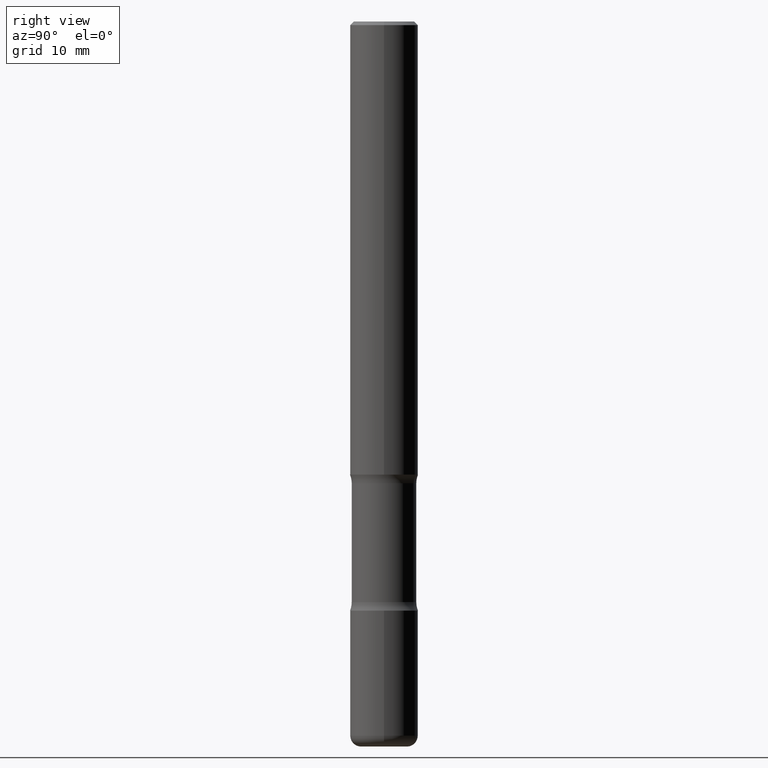
[diagram: clean part render]
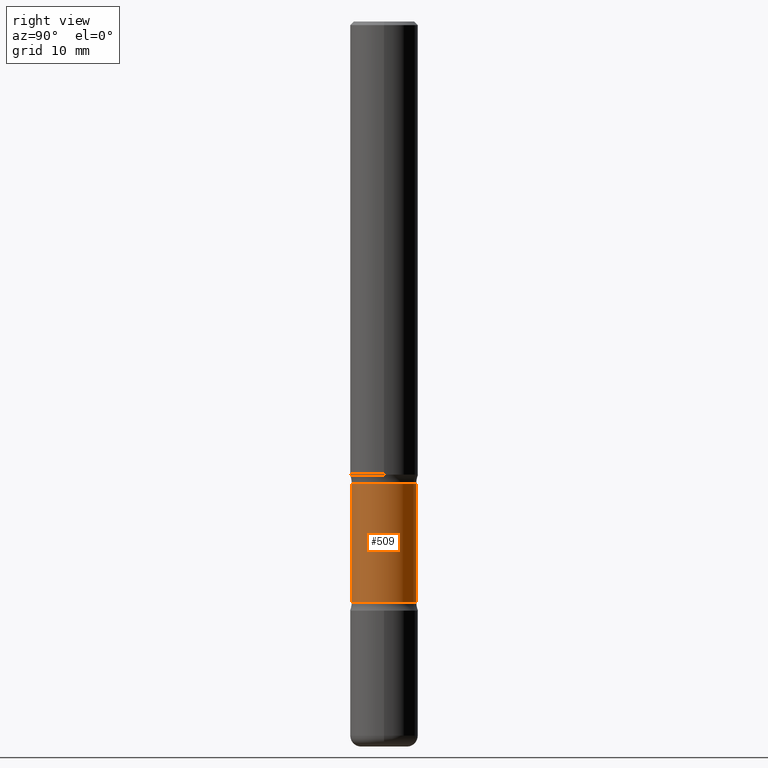
[diagram: same view with one face highlighted and labeled with its STEP entity id]
A machine part, right view. The second image highlights one B-rep face of the part: STEP entity #509.
In plain terms, the highlighted cylindrical surface (edge-blend (fillet) strip) has radius 4.5244 mm, axis along (0, -0, -1).
Its self-contained STEP definition (entity closure, byte-faithful):
#13 = ORIENTED_EDGE ( 'NONE', *, *, #151, .T. ) ;
#20 = CARTESIAN_POINT ( 'NONE',  ( 1.243840226962927197E-15, 0.1781249999999909572, -2.547495887979909224 ) ) ;
#28 = DIRECTION ( 'NONE',  ( 2.558681667686983511E-29, -3.329354077496592524E-15, -1.000000000000000000 ) ) ;
#50 = ORIENTED_EDGE ( 'NONE', *, *, #347, .F. ) ;
#56 = DIRECTION ( 'NONE',  ( 6.982962677686265133E-15, 1.000000000000000000, -3.067338098149349483E-15 ) ) ;
#61 = DIRECTION ( 'NONE',  ( 2.558681667686983511E-29, -3.329354077496592524E-15, -1.000000000000000000 ) ) ;
#70 = DIRECTION ( 'NONE',  ( 2.558681667686983511E-29, -3.329354077496592524E-15, -1.000000000000000000 ) ) ;
#95 = CIRCLE ( 'NONE', #410, 0.1781249999999999223 ) ;
#101 = CARTESIAN_POINT ( 'NONE',  ( 1.243840226962943961E-15, 0.1781249999999887368, -3.202504112020092553 ) ) ;
#103 = VERTEX_POINT ( 'NONE', #519 ) ;
#113 = VERTEX_POINT ( 'NONE', #20 ) ;
#149 = LINE ( 'NONE', #328, #386 ) ;
#151 = EDGE_CURVE ( 'NONE', #113, #103, #345, .T. ) ;
#220 = EDGE_CURVE ( 'NONE', #103, #551, #149, .T. ) ;
#241 = VERTEX_POINT ( 'NONE', #101 ) ;
#261 = CARTESIAN_POINT ( 'NONE',  ( -1.254184790217529307E-15, -0.1781250000000111355, -3.202504112020091220 ) ) ;
#262 = EDGE_CURVE ( 'NONE', #241, #551, #95, .T. ) ;
#263 = DIRECTION ( 'NONE',  ( 6.982962677686266711E-15, 1.000000000000000000, -3.067338098149349089E-15 ) ) ;
#285 = CARTESIAN_POINT ( 'NONE',  ( 7.826246762236988201E-29, -1.118918372292999451E-14, -3.202504112020091664 ) ) ;
#302 = AXIS2_PLACEMENT_3D ( 'NONE', #543, #28, #374 ) ;
#303 = AXIS2_PLACEMENT_3D ( 'NONE', #348, #418, #263 ) ;
#307 = CYLINDRICAL_SURFACE ( 'NONE', #303, 0.1781249999999999500 ) ;
#323 = CARTESIAN_POINT ( 'NONE',  ( 1.243840226962964471E-15, 0.1781249999999861278, -4.000000000000000888 ) ) ;
#328 = CARTESIAN_POINT ( 'NONE',  ( -1.222026205852954821E-15, -0.1781250000000138001, -3.999999999999999556 ) ) ;
#345 = CIRCLE ( 'NONE', #302, 0.1781249999999999500 ) ;
#347 = EDGE_CURVE ( 'NONE', #113, #241, #527, .T. ) ;
#348 = CARTESIAN_POINT ( 'NONE',  ( 9.866784870866931853E-29, -1.384432990936266734E-14, -4.000000000000000000 ) ) ;
#360 = ORIENTED_EDGE ( 'NONE', *, *, #220, .T. ) ;
#374 = DIRECTION ( 'NONE',  ( 6.982962677686266711E-15, 1.000000000000000000, -3.067338098149349089E-15 ) ) ;
#386 = VECTOR ( 'NONE', #489, 39.37007874015748143 ) ;
#410 = AXIS2_PLACEMENT_3D ( 'NONE', #285, #61, #56 ) ;
#418 = DIRECTION ( 'NONE',  ( 2.558681667686983511E-29, -3.329354077496592524E-15, -1.000000000000000000 ) ) ;
#431 = ORIENTED_EDGE ( 'NONE', *, *, #262, .F. ) ;
#489 = DIRECTION ( 'NONE',  ( 2.558681667686983511E-29, -3.329354077496592524E-15, -1.000000000000000000 ) ) ;
#509 = ADVANCED_FACE ( 'NONE', ( #548 ), #307, .T. ) ;
#519 = CARTESIAN_POINT ( 'NONE',  ( -1.254184790217547253E-15, -0.1781250000000089706, -2.547495887979908336 ) ) ;
#527 = LINE ( 'NONE', #323, #553 ) ;
#528 = EDGE_LOOP ( 'NONE', ( #13, #360, #431, #50 ) ) ;
#543 = CARTESIAN_POINT ( 'NONE',  ( 6.150289227201164007E-29, -9.008429421428009851E-15, -2.547495887979908780 ) ) ;
#548 = FACE_OUTER_BOUND ( 'NONE', #528, .T. ) ;
#551 = VERTEX_POINT ( 'NONE', #261 ) ;
#553 = VECTOR ( 'NONE', #70, 39.37007874015748143 ) ;